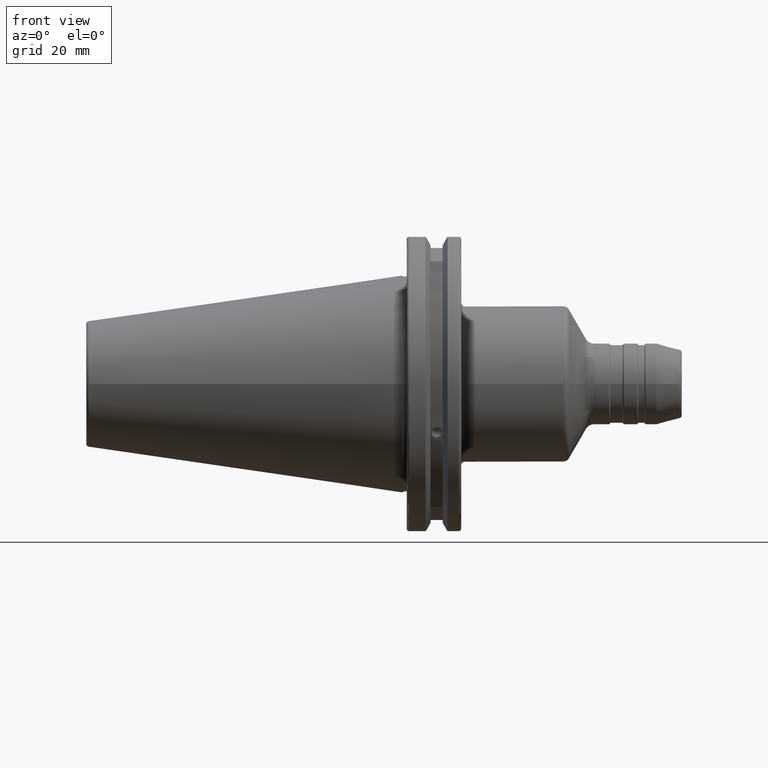
[diagram: clean part render]
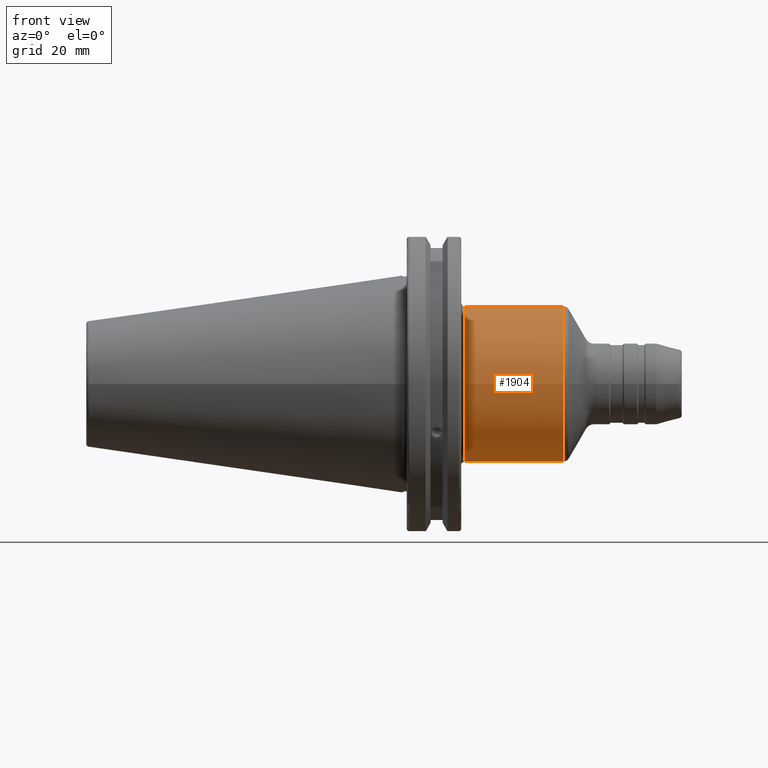
[diagram: same view with one face highlighted and labeled with its STEP entity id]
A machine part, front view. The second image highlights one B-rep face of the part: STEP entity #1904.
In plain terms, the highlighted cylindrical surface (bore or boss wall) has radius 25 mm, axis along (1, 0, 0).
Its self-contained STEP definition (entity closure, byte-faithful):
#161=LINE('',#2996,#267);
#267=VECTOR('',#2432,25.);
#368=CYLINDRICAL_SURFACE('',#2093,25.);
#418=FACE_OUTER_BOUND('',#529,.T.);
#529=EDGE_LOOP('',(#1391,#1392,#1393,#1394,#1395,#1396));
#686=CIRCLE('',#2089,25.);
#689=CIRCLE('',#2092,25.);
#690=CIRCLE('',#2094,25.);
#691=CIRCLE('',#2095,25.);
#809=VERTEX_POINT('',#2985);
#810=VERTEX_POINT('',#2986);
#812=VERTEX_POINT('',#2993);
#813=VERTEX_POINT('',#2994);
#1028=EDGE_CURVE('',#809,#810,#686,.T.);
#1031=EDGE_CURVE('',#810,#809,#689,.T.);
#1032=EDGE_CURVE('',#812,#813,#690,.T.);
#1033=EDGE_CURVE('',#812,#809,#161,.T.);
#1034=EDGE_CURVE('',#813,#812,#691,.T.);
#1391=ORIENTED_EDGE('',*,*,#1032,.F.);
#1392=ORIENTED_EDGE('',*,*,#1033,.T.);
#1393=ORIENTED_EDGE('',*,*,#1031,.F.);
#1394=ORIENTED_EDGE('',*,*,#1028,.F.);
#1395=ORIENTED_EDGE('',*,*,#1033,.F.);
#1396=ORIENTED_EDGE('',*,*,#1034,.F.);
#1904=ADVANCED_FACE('',(#418),#368,.T.);
#2089=AXIS2_PLACEMENT_3D('',#2987,#2420,#2421);
#2092=AXIS2_PLACEMENT_3D('',#2991,#2426,#2427);
#2093=AXIS2_PLACEMENT_3D('',#2992,#2428,#2429);
#2094=AXIS2_PLACEMENT_3D('',#2995,#2430,#2431);
#2095=AXIS2_PLACEMENT_3D('',#2997,#2433,#2434);
#2420=DIRECTION('center_axis',(-1.,0.,0.));
#2421=DIRECTION('ref_axis',(0.,-1.,-1.22464679914735E-16));
#2426=DIRECTION('center_axis',(-1.,0.,0.));
#2427=DIRECTION('ref_axis',(0.,-1.,-1.22464679914735E-16));
#2428=DIRECTION('center_axis',(1.,0.,0.));
#2429=DIRECTION('ref_axis',(0.,1.,0.));
#2430=DIRECTION('center_axis',(1.,0.,0.));
#2431=DIRECTION('ref_axis',(0.,-1.,1.83697019872103E-16));
#2432=DIRECTION('',(-1.,0.,0.));
#2433=DIRECTION('center_axis',(1.,0.,0.));
#2434=DIRECTION('ref_axis',(0.,-1.,1.83697019872103E-16));
#2985=CARTESIAN_POINT('',(20.05,-25.,-3.06161699786838E-15));
#2986=CARTESIAN_POINT('',(20.05,-3.06161699786838E-15,-25.));
#2987=CARTESIAN_POINT('Origin',(20.05,0.,0.));
#2991=CARTESIAN_POINT('Origin',(20.05,0.,0.));
#2992=CARTESIAN_POINT('Origin',(36.0608983848622,0.,0.));
#2993=CARTESIAN_POINT('',(51.9170962313452,-25.,-3.06161699786838E-15));
#2994=CARTESIAN_POINT('',(51.9170962313452,-3.06161699786838E-15,25.));
#2995=CARTESIAN_POINT('Origin',(51.9170962313452,0.,0.));
#2996=CARTESIAN_POINT('',(36.0608983848622,-25.,-3.06161699786838E-15));
#2997=CARTESIAN_POINT('Origin',(51.9170962313452,0.,0.));